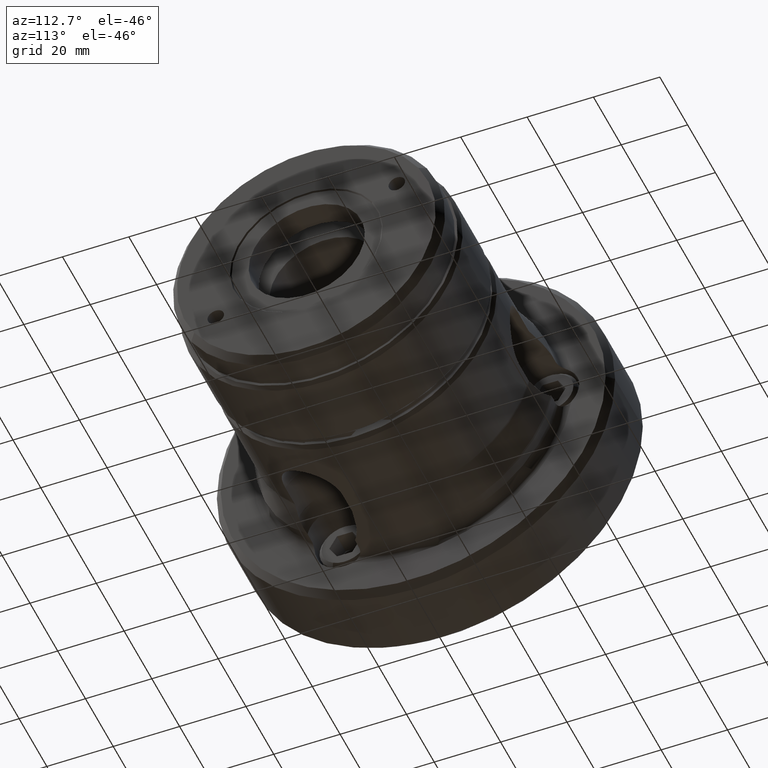
[diagram: clean part render]
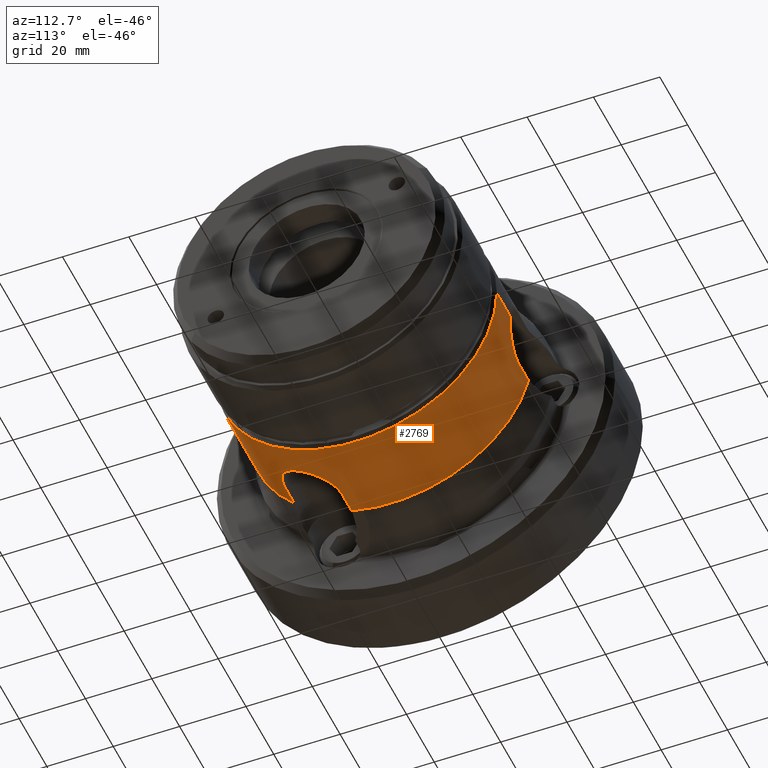
[diagram: same view with one face highlighted and labeled with its STEP entity id]
A machine part, auxiliary view. The second image highlights one B-rep face of the part: STEP entity #2769.
In plain terms, the highlighted cylindrical surface (partial cylindrical patch) has radius 42.5 mm, axis along (-1, 0, 0).
Its self-contained STEP definition (entity closure, byte-faithful):
#17 = EDGE_CURVE ( 'NONE', #1272, #6335, #2496, .T. ) ;
#111 = CARTESIAN_POINT ( 'NONE',  ( 45.00000000000000000, -29.31364187806169500, -30.77272168406213000 ) ) ;
#123 = DIRECTION ( 'NONE',  ( -1.000000000000000000, 8.386477729145238100E-033, -0.0000000000000000000 ) ) ;
#126 = DIRECTION ( 'NONE',  ( -1.000000000000000000, 1.360567432138683400E-016, 2.356571919587694700E-016 ) ) ;
#132 = CARTESIAN_POINT ( 'NONE',  ( 53.91926070491095400, -17.29938519828151700, -38.82094212946911700 ) ) ;
#163 = CARTESIAN_POINT ( 'NONE',  ( 48.22663915742536000, -12.49837317722458600, -40.62150329238134800 ) ) ;
#262 = EDGE_CURVE ( 'NONE', #943, #4183, #6762, .T. ) ;
#322 = ORIENTED_EDGE ( 'NONE', *, *, #3963, .T. ) ;
#353 = CARTESIAN_POINT ( 'NONE',  ( 47.58714442449841200, -29.06322750780771700, -31.00948892077144200 ) ) ;
#384 = CARTESIAN_POINT ( 'NONE',  ( 54.30383972876944700, -24.23089644514391600, -34.91711579433970800 ) ) ;
#401 = CARTESIAN_POINT ( 'NONE',  ( 46.31162356682100500, 41.32266171441223400, -9.935026037583545700 ) ) ;
#438 = CARTESIAN_POINT ( 'NONE',  ( 47.27033219504166100, 41.36794532183046200, -9.744094531194241100 ) ) ;
#649 = VERTEX_POINT ( 'NONE', #2039 ) ;
#676 = EDGE_CURVE ( 'NONE', #1272, #6460, #2601, .T. ) ;
#713 = VERTEX_POINT ( 'NONE', #7153 ) ;
#718 = CARTESIAN_POINT ( 'NONE',  ( 53.93663753184701200, 42.27292448690725700, -4.428896820507288700 ) ) ;
#755 = CARTESIAN_POINT ( 'NONE',  ( 38.59343201409696200, -3.236629580775050300E-031, 0.0000000000000000000 ) ) ;
#793 = VECTOR ( 'NONE', #5896, 1000.000000000000000 ) ;
#846 = DIRECTION ( 'NONE',  ( -8.386477729145239400E-033, -1.000000000000000000, 0.0000000000000000000 ) ) ;
#859 = CARTESIAN_POINT ( 'NONE',  ( 53.45070526957940900, -16.50839189707996000, -39.16372571599941200 ) ) ;
#891 = CARTESIAN_POINT ( 'NONE',  ( 46.64318344875412900, -12.12193237524280100, -40.73466735061666100 ) ) ;
#911 = CARTESIAN_POINT ( 'NONE',  ( 38.59343201409696200, -29.31364187806170900, -30.77272168406212700 ) ) ;
#943 = VERTEX_POINT ( 'NONE', #4499 ) ;
#991 = CARTESIAN_POINT ( 'NONE',  ( 54.92773891679267700, 42.50000000000000000, 5.204748887598935600E-015 ) ) ;
#1083 = CARTESIAN_POINT ( 'NONE',  ( 48.52650244063046600, -28.83584030544093900, -31.22116039749477800 ) ) ;
#1112 = CARTESIAN_POINT ( 'NONE',  ( 54.59873337623901800, -23.45486317682802000, -35.44317101826168000 ) ) ;
#1125 = CARTESIAN_POINT ( 'NONE',  ( 45.66153746889743600, 41.30677966101693200, -9.999997701809558500 ) ) ;
#1158 = VERTEX_POINT ( 'NONE', #5435 ) ;
#1249 = CIRCLE ( 'NONE', #2681, 42.50000000000000000 ) ;
#1267 = CARTESIAN_POINT ( 'NONE',  ( 45.00000000000000000, -11.99313778295558600, -40.77271938587176000 ) ) ;
#1272 = VERTEX_POINT ( 'NONE', #911 ) ;
#1441 = CARTESIAN_POINT ( 'NONE',  ( 54.41187572590458600, 42.37911229702785200, -3.218667331267794500 ) ) ;
#1471 = DIRECTION ( 'NONE',  ( 0.0000000000000000000, -1.000000000000000000, 0.0000000000000000000 ) ) ;
#1524 = CARTESIAN_POINT ( 'NONE',  ( 54.92773891679267700, -21.25000000000017100, -36.80607966083854200 ) ) ;
#1573 = CARTESIAN_POINT ( 'NONE',  ( 52.90359477280880200, -15.75926284969740900, -39.47101255637619500 ) ) ;
#1600 = CARTESIAN_POINT ( 'NONE',  ( 45.65977680296240500, -12.00927288630090900, -40.76798362432023700 ) ) ;
#1627 = EDGE_CURVE ( 'NONE', #649, #2622, #1249, .T. ) ;
#1793 = CARTESIAN_POINT ( 'NONE',  ( 50.00270488166084000, -28.31852616563993100, -31.69303498055594300 ) ) ;
#1817 = CARTESIAN_POINT ( 'NONE',  ( 54.86562120116874300, -22.37061990340340500, -36.14168219784620100 ) ) ;
#1892 = CARTESIAN_POINT ( 'NONE',  ( 48.21513701732545300, 41.43073259523021800, -9.473858396691774400 ) ) ;
#1913 = AXIS2_PLACEMENT_3D ( 'NONE', #6573, #123, #846 ) ;
#2039 = CARTESIAN_POINT ( 'NONE',  ( 64.30000000000001100, 42.50000000000000000, 5.204748896376250900E-015 ) ) ;
#2125 = CARTESIAN_POINT ( 'NONE',  ( 49.43121389200044300, 41.54009536961120100, -8.985357390307930500 ) ) ;
#2145 = CARTESIAN_POINT ( 'NONE',  ( 64.30000000000001100, -5.392505179840389000E-031, 0.0000000000000000000 ) ) ;
#2151 = CARTESIAN_POINT ( 'NONE',  ( 54.67774730405199800, 42.44061587211266600, -2.268938327487993100 ) ) ;
#2298 = CARTESIAN_POINT ( 'NONE',  ( 52.27625330830714700, -15.05245667014438400, -39.74580670550810200 ) ) ;
#2331 = CARTESIAN_POINT ( 'NONE',  ( 45.00000000000000000, -11.99313778295558600, -40.77271938587176000 ) ) ;
#2475 = CARTESIAN_POINT ( 'NONE',  ( 45.66153746889746400, -29.31364187806169900, -30.77272168406214800 ) ) ;
#2496 = CIRCLE ( 'NONE', #2500, 42.50000000000000000 ) ;
#2500 = AXIS2_PLACEMENT_3D ( 'NONE', #6576, #7206, #2924 ) ;
#2510 = CARTESIAN_POINT ( 'NONE',  ( 51.07680236928683800, -27.74907098208131400, -32.19136661831688400 ) ) ;
#2545 = CARTESIAN_POINT ( 'NONE',  ( 54.92773891679267700, -21.25000000000017100, -36.80607966083854200 ) ) ;
#2546 = ORIENTED_EDGE ( 'NONE', *, *, #4004, .T. ) ;
#2601 = LINE ( 'NONE', #5680, #4276 ) ;
#2622 = VERTEX_POINT ( 'NONE', #3482 ) ;
#2681 = AXIS2_PLACEMENT_3D ( 'NONE', #2145, #7137, #2861 ) ;
#2724 = VERTEX_POINT ( 'NONE', #1524 ) ;
#2769 = ADVANCED_FACE ( 'NONE', ( #3251 ), #7591, .T. ) ;
#2842 = CARTESIAN_POINT ( 'NONE',  ( 50.81315102926738100, 41.71500901404827000, -8.132795987608803400 ) ) ;
#2861 = DIRECTION ( 'NONE',  ( 0.0000000000000000000, -1.000000000000000000, 0.0000000000000000000 ) ) ;
#2871 = CARTESIAN_POINT ( 'NONE',  ( 54.92773891679267700, 42.49999999999999300, -0.6537119345134795300 ) ) ;
#2924 = DIRECTION ( 'NONE',  ( 0.0000000000000000000, -1.000000000000000000, 0.0000000000000000000 ) ) ;
#2950 = EDGE_CURVE ( 'NONE', #2622, #6335, #3343, .T. ) ;
#2971 = CARTESIAN_POINT ( 'NONE',  ( 54.92773891679267000, -20.68438779713462600, -37.13263601841992300 ) ) ;
#3006 = CARTESIAN_POINT ( 'NONE',  ( 51.08765351327520700, -13.99331238568988300, -40.13195258971879300 ) ) ;
#3221 = CARTESIAN_POINT ( 'NONE',  ( 51.81991575381704300, -27.25549254647583900, -32.61046997845802800 ) ) ;
#3251 = FACE_OUTER_BOUND ( 'NONE', #8312, .T. ) ;
#3343 = LINE ( 'NONE', #5399, #6935 ) ;
#3482 = CARTESIAN_POINT ( 'NONE',  ( 64.30000000000001100, -42.50000000000000000, 0.0000000000000000000 ) ) ;
#3552 = CARTESIAN_POINT ( 'NONE',  ( 51.58033486255689600, 41.83023511695445500, -7.518407755887254900 ) ) ;
#3688 = CARTESIAN_POINT ( 'NONE',  ( 54.61349820758525900, -18.96437021044332400, -38.03962717182744800 ) ) ;
#3715 = CARTESIAN_POINT ( 'NONE',  ( 50.00329793809970600, -13.30541872899123500, -40.36385795725076500 ) ) ;
#3765 = ORIENTED_EDGE ( 'NONE', *, *, #1627, .T. ) ;
#3927 = CARTESIAN_POINT ( 'NONE',  ( 52.91200058288947600, -26.31740385880632300, -33.37588912523718000 ) ) ;
#3963 = EDGE_CURVE ( 'NONE', #1158, #943, #8377, .T. ) ;
#3972 = DIRECTION ( 'NONE',  ( -1.000000000000000000, 8.386477729145236700E-033, -0.0000000000000000000 ) ) ;
#4004 = EDGE_CURVE ( 'NONE', #6460, #2724, #4048, .T. ) ;
#4048 = B_SPLINE_CURVE_WITH_KNOTS ( 'NONE', 3,
 ( #6051, #2475, #8902, #4631, #353, #5364, #1083, #6078, #1793, #6798, #2510, #7493, #3221, #8226, #3927, #8930, #4663, #384, #5387, #1112, #6111, #1817, #6828, #2545 ),
 .UNSPECIFIED., .F., .F.,
 ( 4, 2, 2, 2, 2, 2, 2, 2, 2, 2, 2, 4 ),
 ( 1.971310356733518700E-007, 0.001956344073272403400, 0.002934417544390768500, 0.003912491015509133600, 0.005868637957745869900, 0.006846711428864230700, 0.007824784899982593200, 0.009780931842219316500, 0.01173707878445604000, 0.01271515225557439700, 0.01369322572669275300, 0.01564937266892947600 ),
 .UNSPECIFIED. ) ;
#4183 = VERTEX_POINT ( 'NONE', #991 ) ;
#4255 = EDGE_CURVE ( 'NONE', #649, #4183, #8058, .T. ) ;
#4262 = ORIENTED_EDGE ( 'NONE', *, *, #5283, .T. ) ;
#4272 = CARTESIAN_POINT ( 'NONE',  ( 52.50327166337317000, 41.98585400819597900, -6.607311697664968600 ) ) ;
#4276 = VECTOR ( 'NONE', #7784, 1000.000000000000000 ) ;
#4293 = CARTESIAN_POINT ( 'NONE',  ( 38.59343201409696200, -42.50000000000000000, 0.0000000000000000000 ) ) ;
#4402 = CARTESIAN_POINT ( 'NONE',  ( 39.49999999999999300, -11.99313778295558700, -40.77271938587176700 ) ) ;
#4408 = CARTESIAN_POINT ( 'NONE',  ( 54.05846459427566200, -17.57381849389287600, -38.69759198874074000 ) ) ;
#4450 = CARTESIAN_POINT ( 'NONE',  ( 49.12916671663132500, -12.86561461944368500, -40.50607887609570000 ) ) ;
#4499 = CARTESIAN_POINT ( 'NONE',  ( 45.00000000000000000, 41.30677966101695400, -9.999997701809551400 ) ) ;
#4631 = CARTESIAN_POINT ( 'NONE',  ( 47.27033219504165400, -29.12260606180660000, -30.95364428547354800 ) ) ;
#4663 = CARTESIAN_POINT ( 'NONE',  ( 53.93663753184699800, -24.97199940075323400, -34.39497808766918000 ) ) ;
#4702 = CARTESIAN_POINT ( 'NONE',  ( 45.00000000000000000, 41.30677966101695400, -9.999997701809551400 ) ) ;
#4999 = CARTESIAN_POINT ( 'NONE',  ( 53.63363461916739500, 42.20762055468167500, -5.007243541076569200 ) ) ;
#5114 = ORIENTED_EDGE ( 'NONE', *, *, #17, .F. ) ;
#5142 = CARTESIAN_POINT ( 'NONE',  ( 53.61569008599730100, -16.76744977318757500, -39.05364136878588300 ) ) ;
#5168 = CARTESIAN_POINT ( 'NONE',  ( 47.60523436629373600, -12.31189549639027600, -40.67781587041498200 ) ) ;
#5173 = CARTESIAN_POINT ( 'NONE',  ( 39.49999999999999300, 41.30677966101695400, -9.999997701809554900 ) ) ;
#5206 = EDGE_CURVE ( 'NONE', #5988, #713, #7627, .T. ) ;
#5283 = EDGE_CURVE ( 'NONE', #2724, #5988, #9079, .T. ) ;
#5296 = VECTOR ( 'NONE', #126, 1000.000000000000000 ) ;
#5364 = CARTESIAN_POINT ( 'NONE',  ( 48.21513701732544600, -28.91996834100684000, -31.14313772652332400 ) ) ;
#5387 = CARTESIAN_POINT ( 'NONE',  ( 54.41187572590457900, -23.97700382372305900, -35.09205417342558800 ) ) ;
#5399 = CARTESIAN_POINT ( 'NONE',  ( -3.564253034886726600E-031, -42.50000000000000000, 0.0000000000000000000 ) ) ;
#5429 = CARTESIAN_POINT ( 'NONE',  ( 52.91200058288946200, 42.06306978575136700, -6.103595740762096400 ) ) ;
#5435 = CARTESIAN_POINT ( 'NONE',  ( 38.59343201409696200, 41.30677966101696100, -9.999997701809549600 ) ) ;
#5680 = CARTESIAN_POINT ( 'NONE',  ( 39.49999999999999300, -29.31364187806169500, -30.77272168406212300 ) ) ;
#5729 = CARTESIAN_POINT ( 'NONE',  ( 54.30383972876945400, 42.35455752735301600, -3.526013980794623100 ) ) ;
#5770 = DIRECTION ( 'NONE',  ( -1.000000000000000000, 8.386477729145238100E-033, -0.0000000000000000000 ) ) ;
#5857 = CARTESIAN_POINT ( 'NONE',  ( 53.09465767814046400, -16.00429872929908400, -39.37241213297662800 ) ) ;
#5887 = CARTESIAN_POINT ( 'NONE',  ( 46.31610659765760800, -12.07357896120177700, -40.74898544894229200 ) ) ;
#5896 = DIRECTION ( 'NONE',  ( 1.000000000000000000, 2.721134864277344200E-016, 0.0000000000000000000 ) ) ;
#5898 = CARTESIAN_POINT ( 'NONE',  ( 47.58714442449840500, 41.38661891766407300, -9.664748877342269400 ) ) ;
#5988 = VERTEX_POINT ( 'NONE', #1267 ) ;
#6051 = CARTESIAN_POINT ( 'NONE',  ( 45.00000000000000000, -29.31364187806169500, -30.77272168406213000 ) ) ;
#6078 = CARTESIAN_POINT ( 'NONE',  ( 49.43121389200043600, -28.55159544689466200, -31.48209917055752500 ) ) ;
#6111 = CARTESIAN_POINT ( 'NONE',  ( 54.67774730405199100, -23.18526616728128100, -35.62018233376251400 ) ) ;
#6158 = VECTOR ( 'NONE', #8183, 1000.000000000000000 ) ;
#6335 = VERTEX_POINT ( 'NONE', #4293 ) ;
#6418 = CARTESIAN_POINT ( 'NONE',  ( 48.52650244063046600, 41.45623819257965400, -9.361990045235497600 ) ) ;
#6455 = CARTESIAN_POINT ( 'NONE',  ( 54.59873337623901800, 42.42211808090499400, -2.590921844290209600 ) ) ;
#6460 = VERTEX_POINT ( 'NONE', #111 ) ;
#6573 = CARTESIAN_POINT ( 'NONE',  ( 0.0000000000000000000, 0.0000000000000000000, 0.0000000000000000000 ) ) ;
#6576 = CARTESIAN_POINT ( 'NONE',  ( 38.59343201409696200, -3.236629580775050300E-031, 0.0000000000000000000 ) ) ;
#6582 = ORIENTED_EDGE ( 'NONE', *, *, #5206, .T. ) ;
#6589 = CARTESIAN_POINT ( 'NONE',  ( 52.49494450188652900, -15.28386127454387600, -39.65751861037144000 ) ) ;
#6614 = CARTESIAN_POINT ( 'NONE',  ( 45.33046529438247100, -11.99313778295559100, -40.77271938587179500 ) ) ;
#6762 = B_SPLINE_CURVE_WITH_KNOTS ( 'NONE', 3,
 ( #4702, #1125, #401, #438, #5898, #1892, #6418, #2125, #7116, #2842, #7831, #3552, #8555, #4272, #5429, #4999, #718, #5729, #1441, #6455, #2151, #7145, #2871, #7865 ),
 .UNSPECIFIED., .F., .F.,
 ( 4, 2, 2, 2, 2, 2, 2, 2, 2, 2, 2, 4 ),
 ( 1.971310356734459200E-007, 0.001956344073272428100, 0.002934417544390804900, 0.003912491015509181300, 0.005868637957745915900, 0.006846711428864275800, 0.007824784899982638300, 0.009780931842219346000, 0.01173707878445605400, 0.01271515225557440900, 0.01369322572669276700, 0.01564937266892947900 ),
 .UNSPECIFIED. ) ;
#6784 = CIRCLE ( 'NONE', #7362, 42.50000000000000000 ) ;
#6798 = CARTESIAN_POINT ( 'NONE',  ( 50.81315102926737400, -27.90071243608965900, -32.05985953145812300 ) ) ;
#6828 = CARTESIAN_POINT ( 'NONE',  ( 54.92773891679269100, -21.81613114204592900, -36.47922369358179400 ) ) ;
#6935 = VECTOR ( 'NONE', #3972, 1000.000000000000000 ) ;
#7116 = CARTESIAN_POINT ( 'NONE',  ( 50.00270488166084700, 41.60623649901030100, -8.678045566900346200 ) ) ;
#7137 = DIRECTION ( 'NONE',  ( -1.000000000000000000, 8.386477729145201100E-033, -0.0000000000000000000 ) ) ;
#7145 = CARTESIAN_POINT ( 'NONE',  ( 54.86562120116874300, 42.48492487054032600, -1.302684035829828800 ) ) ;
#7153 = CARTESIAN_POINT ( 'NONE',  ( 38.59343201409696200, -11.99313778295558000, -40.77271938587177400 ) ) ;
#7206 = DIRECTION ( 'NONE',  ( -1.000000000000000000, 8.386477729145238100E-033, -0.0000000000000000000 ) ) ;
#7252 = CARTESIAN_POINT ( 'NONE',  ( 54.92773891679267700, -21.25000000000017100, -36.80607966083854200 ) ) ;
#7278 = CARTESIAN_POINT ( 'NONE',  ( 51.58655286893300500, -14.38952473190855000, -39.99267417793586100 ) ) ;
#7362 = AXIS2_PLACEMENT_3D ( 'NONE', #755, #5770, #1471 ) ;
#7417 = ORIENTED_EDGE ( 'NONE', *, *, #676, .T. ) ;
#7432 = CARTESIAN_POINT ( 'NONE',  ( 3.564253034886726600E-031, 42.50000000000000000, 5.204748896376250900E-015 ) ) ;
#7493 = CARTESIAN_POINT ( 'NONE',  ( 51.58033486255687400, -27.42624967108569200, -32.46684237961472500 ) ) ;
#7570 = EDGE_CURVE ( 'NONE', #1158, #713, #6784, .T. ) ;
#7591 = CYLINDRICAL_SURFACE ( 'NONE', #1913, 42.50000000000000000 ) ;
#7595 = ORIENTED_EDGE ( 'NONE', *, *, #4255, .F. ) ;
#7627 = LINE ( 'NONE', #4402, #5296 ) ;
#7784 = DIRECTION ( 'NONE',  ( 1.000000000000000000, -1.360567432138683400E-016, -2.356571919587694700E-016 ) ) ;
#7831 = CARTESIAN_POINT ( 'NONE',  ( 51.07680236928688800, 41.75307676504147700, -7.935717092741380300 ) ) ;
#7865 = CARTESIAN_POINT ( 'NONE',  ( 54.92773891679267700, 42.50000000000000000, 5.204748887598935600E-015 ) ) ;
#7972 = CARTESIAN_POINT ( 'NONE',  ( 54.86363849837248100, -20.10251384832019600, -37.45062762929987300 ) ) ;
#8008 = CARTESIAN_POINT ( 'NONE',  ( 50.28164541217233800, -13.46862911905833100, -40.30980193699777200 ) ) ;
#8058 = LINE ( 'NONE', #7432, #6158 ) ;
#8183 = DIRECTION ( 'NONE',  ( -1.000000000000000000, 8.386477729145236700E-033, -0.0000000000000000000 ) ) ;
#8226 = CARTESIAN_POINT ( 'NONE',  ( 52.50327166337316200, -26.71502678499810900, -33.05716032184982800 ) ) ;
#8303 = ORIENTED_EDGE ( 'NONE', *, *, #262, .T. ) ;
#8312 = EDGE_LOOP ( 'NONE', ( #7595, #3765, #8539, #5114, #7417, #2546, #4262, #6582, #8760, #322, #8303 ) ) ;
#8377 = LINE ( 'NONE', #5173, #793 ) ;
#8539 = ORIENTED_EDGE ( 'NONE', *, *, #2950, .T. ) ;
#8555 = CARTESIAN_POINT ( 'NONE',  ( 51.81991575381703500, 41.86924170393238900, -7.298713948676284400 ) ) ;
#8694 = CARTESIAN_POINT ( 'NONE',  ( 54.42838677860426300, -18.40284879552023200, -38.31391450821215000 ) ) ;
#8721 = CARTESIAN_POINT ( 'NONE',  ( 49.42655782641713100, -13.00353877421636600, -40.46212026197289900 ) ) ;
#8760 = ORIENTED_EDGE ( 'NONE', *, *, #7570, .F. ) ;
#8902 = CARTESIAN_POINT ( 'NONE',  ( 46.31162356682099800, -29.26531579301347500, -30.81896177787972500 ) ) ;
#8930 = CARTESIAN_POINT ( 'NONE',  ( 53.63363461916735300, -25.44021038684885700, -34.04924986311014800 ) ) ;
#9079 = B_SPLINE_CURVE_WITH_KNOTS ( 'NONE', 3,
 ( #7252, #2971, #7972, #3688, #8694, #4408, #132, #5142, #859, #5857, #1573, #6589, #2298, #7278, #3006, #8008, #3715, #8721, #4450, #163, #5168, #891, #5887, #1600, #6614, #2331 ),
 .UNSPECIFIED., .F., .F.,
 ( 4, 2, 2, 2, 2, 2, 2, 2, 2, 2, 2, 2, 4 ),
 ( 0.01564937266892947600, 0.01760372652611019000, 0.01955808038329090400, 0.02053525731188126200, 0.02151243424047162200, 0.02248961116906198300, 0.02346678809765234300, 0.02542114195483304700, 0.02639831888342340100, 0.02737549581201375500, 0.02932984966919446200, 0.03030702659778482600, 0.03128420352637519000 ),
 .UNSPECIFIED. ) ;